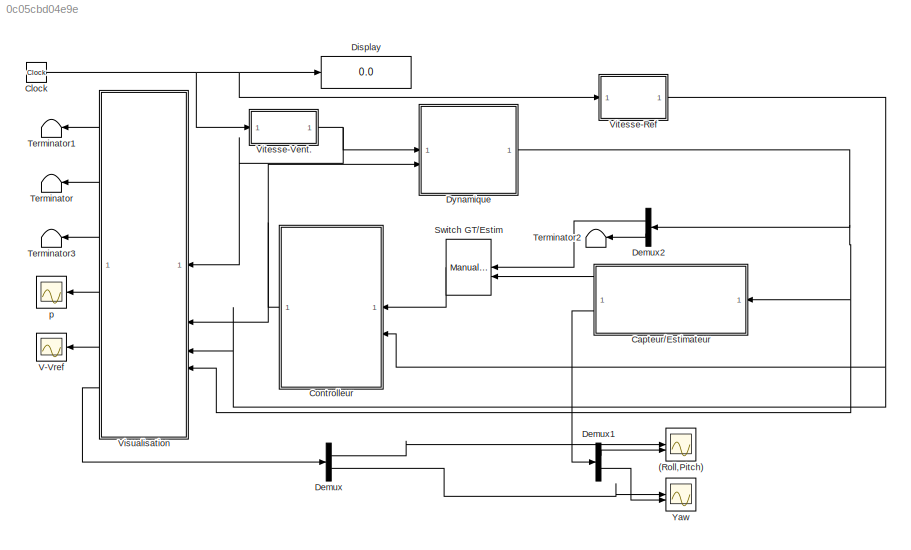
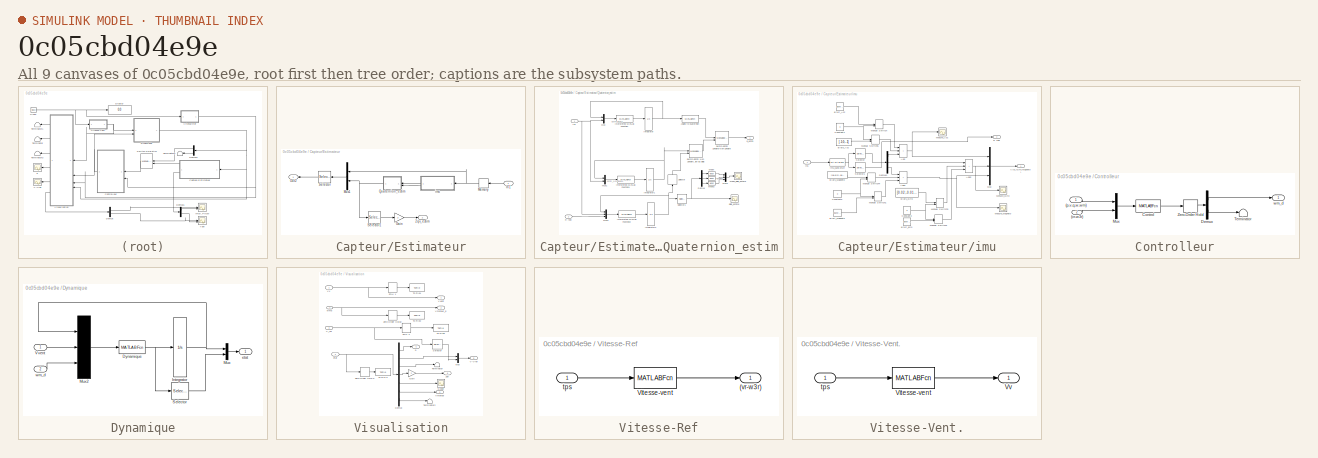
[diagram: thumbnail index - all 9 canvases of the model, root first then tree order]
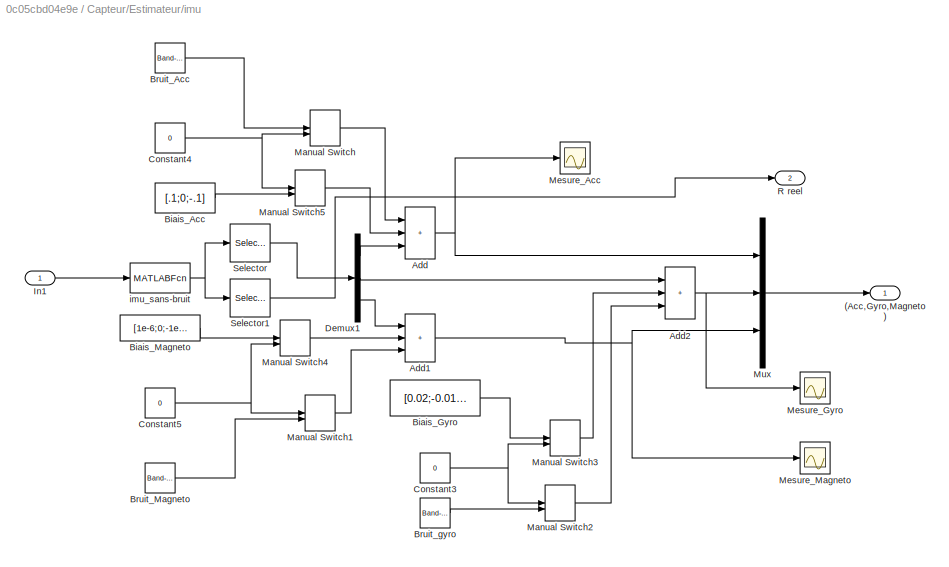
MODEL slx_0c05cbd04e9e
KIND model
CONFIG AbsTol = 1e-2
CONFIG EnableMultiTasking = off
CONFIG FixedStep = 0.01
CONFIG MaxStep = auto
CONFIG MinStep = auto
CONFIG RelTol = 1e-2
CONFIG SampleTimeConstraint = Unconstrained
CONFIG SolverName = FixedStepAuto
CONFIG StartTime = 0.0
CONFIG StopTime = 50
BLOCK [Scope] (Roll,Pitch)
  Floating = off
  NumInputPorts = 2
  ScopeSpecificationString = Simulink.scopes.TimeScopeBlockCfg('CurrentConfiguration', extmgr.ConfigurationSet(extmgr.Configuration('Core','General UI',true),extmgr.Configuration('Core','Source UI',true),extmgr.Configuration('Sources','WiredSimulink',true,'DataLoggingVariableName','ScopeData5','DataLoggingSaveFormat','StructureWithTime','DataLoggingLimitDataPoints',true,'DataLoggingDecimation','1','DataLoggingDecimateData',tr...<+1943ch>
BLOCK [SubSystem] Capteur//Estimateur
  TreatAsAtomicUnit = on
BLOCK [Outport] Capteur//Estimateur/2qv_estim
  Port = 2
BLOCK [Gain] Capteur//Estimateur/Gain
  Gain = 2
BLOCK [Inport] Capteur//Estimateur/In1
BLOCK [Memory] Capteur//Estimateur/Memory
  InheritSampleTime = on
BLOCK [Mux] Capteur//Estimateur/Mux1
  DisplayOption = bar
  Inputs = 2
BLOCK [Outport] Capteur//Estimateur/Out2
BLOCK [SubSystem] Capteur//Estimateur/Quaternion_estim
  TreatAsAtomicUnit = on
BLOCK [MATLABFcn] Capteur//Estimateur/Quaternion_estim/Angles-to-quaternion
  MATLABFcn = angtoquat
  OutputDimensions = 4
BLOCK [Demux] Capteur//Estimateur/Quaternion_estim/Demux
  Outputs = 3
BLOCK [Inport] Capteur//Estimateur/Quaternion_estim/In1
BLOCK [Integrator] Capteur//Estimateur/Quaternion_estim/Integrator
  InitialCondition = [0;0;0]
BLOCK [Integrator] Capteur//Estimateur/Quaternion_estim/Integrator1
  InitialCondition = [1;0;0;0]
BLOCK [Integrator] Capteur//Estimateur/Quaternion_estim/Integrator2
  InitialCondition = [1;0;0;0;0;0;0]
BLOCK [MATLABFcn] Capteur//Estimateur/Quaternion_estim/Interpreted MATLAB Function
  MATLABFcn = estim_lin
  OutputDimensions = 3
BLOCK [MATLABFcn] Capteur//Estimateur/Quaternion_estim/Interpreted MATLAB Function1
  MATLABFcn = estim_nonlin
  OutputDimensions = 4
BLOCK [MATLABFcn] Capteur//Estimateur/Quaternion_estim/Interpreted MATLAB Function2
  MATLABFcn = estim_nonlin_attitude_biais
  OutputDimensions = 7
BLOCK [Reference] Capteur//Estimateur/Quaternion_estim/Mean  REF=dspstat3/Mean
  SourceBlock = dspstat3/Mean
  SourceType = Mean
  UserDataPersistent = on
BLOCK [Reference] Capteur//Estimateur/Quaternion_estim/Mean1  REF=dspstat3/Mean
  SourceBlock = dspstat3/Mean
  SourceType = Mean
  UserDataPersistent = on
BLOCK [Reference] Capteur//Estimateur/Quaternion_estim/Mean2  REF=dspstat3/Mean
  SourceBlock = dspstat3/Mean
  SourceType = Mean
  UserDataPersistent = on
BLOCK [Mux] Capteur//Estimateur/Quaternion_estim/Mux
  DisplayOption = bar
  Inputs = 2
BLOCK [Mux] Capteur//Estimateur/Quaternion_estim/Mux1
  DisplayOption = bar
  Inputs = 2
BLOCK [Mux] Capteur//Estimateur/Quaternion_estim/Mux2
  DisplayOption = bar
  Inputs = 3
BLOCK [Mux] Capteur//Estimateur/Quaternion_estim/Mux3
  DisplayOption = bar
  Inputs = 3
BLOCK [Inport] Capteur//Estimateur/Quaternion_estim/R reel
  Port = 2
BLOCK [Selector] Capteur//Estimateur/Quaternion_estim/Selector
  IndexOptions = Index vector (dialog)
  Indices = [1 2 3 4]
  InputPortWidth = 7
  NameLocation = right
  OutputSizes = 1
BLOCK [Selector] Capteur//Estimateur/Quaternion_estim/Selector1
  IndexOptions = Index vector (dialog)
  Indices = [5 6 7]
  InputPortWidth = 7
  OutputSizes = 1
BLOCK [ManualSwitch] Capteur//Estimateur/Quaternion_estim/Switch-Estim Linéaire//Non-Linéaire
  CurrentSetting = 0
BLOCK [ManualSwitch] Capteur//Estimateur/Quaternion_estim/Switch-Estim Non Linéaire normal//Non-Linéaire avec composation du biais
  CurrentSetting = 0
BLOCK [Scope] Capteur//Estimateur/Quaternion_estim/biais_estime
  Floating = off
  NumInputPorts = 1
  ScopeSpecificationString = Simulink.scopes.TimeScopeBlockCfg('CurrentConfiguration', extmgr.ConfigurationSet(extmgr.Configuration('Core','General UI',true),extmgr.Configuration('Core','Source UI',true),extmgr.Configuration('Sources','WiredSimulink',true,'DataLoggingVariableName','ScopeData1'),extmgr.Configuration('Visuals','Time Domain',true,'SerializedDisplays',{struct('MinYLimReal','-0.09221','MaxYLimReal','0.1118','YLabe...<+1594ch>
BLOCK [Scope] Capteur//Estimateur/Quaternion_estim/mean_biais_estime
  Floating = off
  NumInputPorts = 1
  ScopeSpecificationString = Simulink.scopes.TimeScopeBlockCfg('CurrentConfiguration', extmgr.ConfigurationSet(extmgr.Configuration('Core','General UI',true),extmgr.Configuration('Core','Source UI',true),extmgr.Configuration('Sources','WiredSimulink',true,'DataLoggingVariableName','ScopeData1'),extmgr.Configuration('Visuals','Time Domain',true,'SerializedDisplays',{struct('MinYLimReal','-0.02957','MaxYLimReal','0.02619','YLab...<+1560ch>
BLOCK [Outport] Capteur//Estimateur/Quaternion_estim/q_estim
BLOCK [Selector] Capteur//Estimateur/Selector
  IndexOptions = Index vector (dialog)
  Indices = [1 2 3 4 5 6 21 22 23 24 11 12 13 14 15 16 17]
  InputPortWidth = 24
  OutputSizes = 1
BLOCK [Selector] Capteur//Estimateur/Selector1
  IndexOptions = Index vector (dialog)
  Indices = [2 3 4]
  InputPortWidth = 4
  OutputSizes = 1
BLOCK [SubSystem] Capteur//Estimateur/imu
  TreatAsAtomicUnit = on
BLOCK [Outport] Capteur//Estimateur/imu/(Acc,Gyro,Magneto)
  VectorParamsAs1DForOutWhenUnconnected = off
BLOCK [Sum] Capteur//Estimateur/imu/Add
  IconShape = rectangular
  Inputs = +++
BLOCK [Sum] Capteur//Estimateur/imu/Add1
  IconShape = rectangular
  Inputs = +++
BLOCK [Sum] Capteur//Estimateur/imu/Add2
  IconShape = rectangular
  Inputs = +++
BLOCK [Constant] Capteur//Estimateur/imu/Biais_Acc
  Value = [.1;0;-.1]
BLOCK [Constant] Capteur//Estimateur/imu/Biais_Gyro
  Value = [0.02;-0.01;0.015]
BLOCK [Constant] Capteur//Estimateur/imu/Biais_Magneto
  Value = [1e-6;0;-1e-6]
BLOCK [Reference] Capteur//Estimateur/imu/Bruit_Acc  REF=simulink/Sources/Band-Limited
White Noise
  SourceBlock = simulink/Sources/Band-Limited\nWhite Noise
  SourceType = Band-Limited White Noise.
BLOCK [Reference] Capteur//Estimateur/imu/Bruit_Magneto  REF=simulink/Sources/Band-Limited
White Noise
  SourceBlock = simulink/Sources/Band-Limited\nWhite Noise
  SourceType = Band-Limited White Noise.
BLOCK [Reference] Capteur//Estimateur/imu/Bruit_gyro  REF=simulink/Sources/Band-Limited
White Noise
  SourceBlock = simulink/Sources/Band-Limited\nWhite Noise
  SourceType = Band-Limited White Noise.
BLOCK [Constant] Capteur//Estimateur/imu/Constant3
  Value = 0
BLOCK [Constant] Capteur//Estimateur/imu/Constant4
  Value = 0
BLOCK [Constant] Capteur//Estimateur/imu/Constant5
  Value = 0
BLOCK [Demux] Capteur//Estimateur/imu/Demux1
  Outputs = 3
BLOCK [Inport] Capteur//Estimateur/imu/In1
BLOCK [ManualSwitch] Capteur//Estimateur/imu/Manual Switch
BLOCK [ManualSwitch] Capteur//Estimateur/imu/Manual Switch1
  CurrentSetting = 0
BLOCK [ManualSwitch] Capteur//Estimateur/imu/Manual Switch2
  CurrentSetting = 0
BLOCK [ManualSwitch] Capteur//Estimateur/imu/Manual Switch3
BLOCK [ManualSwitch] Capteur//Estimateur/imu/Manual Switch4
BLOCK [ManualSwitch] Capteur//Estimateur/imu/Manual Switch5
  CurrentSetting = 0
BLOCK [Scope] Capteur//Estimateur/imu/Mesure_Acc
  Floating = off
  NumInputPorts = 1
  ScopeSpecificationString = Simulink.scopes.TimeScopeBlockCfg('CurrentConfiguration', extmgr.ConfigurationSet(extmgr.Configuration('Core','General UI',true),extmgr.Configuration('Core','Source UI',true),extmgr.Configuration('Sources','WiredSimulink',true,'DataLoggingVariableName','ScopeData1'),extmgr.Configuration('Visuals','Time Domain',true,'SerializedDisplays',{struct('MinYLimReal','-24.02401','MaxYLimReal','16.52667','YL...<+1457ch>
BLOCK [Scope] Capteur//Estimateur/imu/Mesure_Gyro
  Floating = off
  NumInputPorts = 1
  ScopeSpecificationString = Simulink.scopes.TimeScopeBlockCfg('CurrentConfiguration', extmgr.ConfigurationSet(extmgr.Configuration('Core','General UI',true),extmgr.Configuration('Core','Source UI',true),extmgr.Configuration('Sources','WiredSimulink',true,'DataLoggingVariableName','ScopeData3'),extmgr.Configuration('Visuals','Time Domain',true,'SerializedDisplays',{struct('MinYLimReal','-2.16212','MaxYLimReal','2.64158','YLab...<+1462ch>
BLOCK [Scope] Capteur//Estimateur/imu/Mesure_Magneto 
  Floating = off
  NumInputPorts = 1
  ScopeSpecificationString = Simulink.scopes.TimeScopeBlockCfg('CurrentConfiguration', extmgr.ConfigurationSet(extmgr.Configuration('Core','General UI',true),extmgr.Configuration('Core','Source UI',true),extmgr.Configuration('Sources','WiredSimulink',true,'DataLoggingVariableName','ScopeData2'),extmgr.Configuration('Visuals','Time Domain',true,'SerializedDisplays',{struct('MinYLimReal','-0.00005','MaxYLimReal','0.00006','YLab...<+1437ch>
BLOCK [Mux] Capteur//Estimateur/imu/Mux
  DisplayOption = bar
  Inputs = 3
BLOCK [Outport] Capteur//Estimateur/imu/R reel
  Port = 2
BLOCK [Selector] Capteur//Estimateur/imu/Selector
  IndexOptions = Index vector (dialog)
  Indices = [1 2 3 4 5 6 7 8 9]
  InputPortWidth = 18
  OutputSizes = 1
BLOCK [Selector] Capteur//Estimateur/imu/Selector1
  IndexOptions = Index vector (dialog)
  Indices = [10 11 12 13 14 15 16 17 18]
  InputPortWidth = 18
  OutputSizes = 1
BLOCK [MATLABFcn] Capteur//Estimateur/imu/imu_sans-bruit
  MATLABFcn = imu(u)
  OutputDimensions = 18
BLOCK [Clock] Clock
BLOCK [SubSystem] Controlleur
BLOCK [Inport] Controlleur/(p,v,q,w,wm)
BLOCK [Inport] Controlleur/(vr-w3r)
  Port = 2
BLOCK [MATLABFcn] Controlleur/Control
  MATLABFcn = control(u)
  OutputDimensions = 7
BLOCK [Demux] Controlleur/Demux
  Outputs = 2
BLOCK [Mux] Controlleur/Mux
  DisplayOption = bar
  Inputs = 2
BLOCK [Terminator] Controlleur/Terminator
BLOCK [ZeroOrderHold] Controlleur/Zero-Order Hold
  SampleTime = 0.01
BLOCK [Outport] Controlleur/wm_d
  VectorParamsAs1DForOutWhenUnconnected = off
BLOCK [Demux] Demux
  Outputs = [2; 1]
BLOCK [Demux] Demux1
  Outputs = [2;1]
BLOCK [Demux] Demux2
  Outputs = [17 3]
BLOCK [Display] Display
  Decimation = 1
BLOCK [SubSystem] Dynamique
BLOCK [MATLABFcn] Dynamique/Dynamique
  MATLABFcn = dynamique(u)
  OutputDimensions = 17
BLOCK [Integrator] Dynamique/Integrator
  InitialCondition = init
BLOCK [Mux] Dynamique/Mux
  DisplayOption = bar
  Inputs = 2
BLOCK [Mux] Dynamique/Mux2
  Inputs = [17 3 4]
BLOCK [Selector] Dynamique/Selector
  IndexOptions = Index vector (dialog)
  Indices = [4 5 6]
  InputPortWidth = 17
  OutputSizes = 1
BLOCK [Inport] Dynamique/Vvent
BLOCK [Outport] Dynamique/etat
  VectorParamsAs1DForOutWhenUnconnected = off
BLOCK [Inport] Dynamique/wm_d
  Port = 2
BLOCK [ManualSwitch] Switch GT//Estim
  CurrentSetting = 0
BLOCK [Terminator] Terminator
BLOCK [Terminator] Terminator1
BLOCK [Terminator] Terminator2
BLOCK [Terminator] Terminator3
BLOCK [Scope] V-Vref
  Floating = off
  NumInputPorts = 1
  ScopeSpecificationString = Simulink.scopes.TimeScopeBlockCfg('CurrentConfiguration', extmgr.ConfigurationSet(extmgr.Configuration('Core','General UI',true),extmgr.Configuration('Core','Source UI',true),extmgr.Configuration('Sources','WiredSimulink',true,'DataLoggingVariableName','ScopeData2','DataLoggingSaveFormat','StructureWithTime','DataLoggingLimitDataPoints',true,'DataLoggingDecimation','1','DataLoggingDecimateData',tr...<+1972ch>
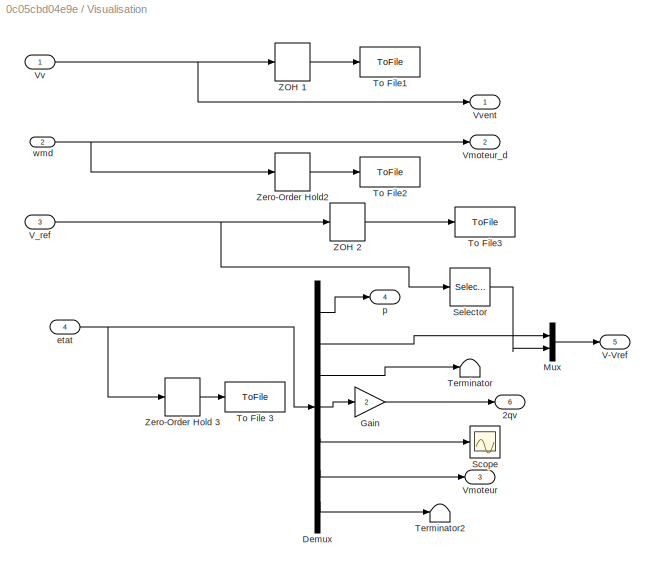
BLOCK [SubSystem] Visualisation
BLOCK [Outport] Visualisation/2qv
  Port = 6
  VectorParamsAs1DForOutWhenUnconnected = off
BLOCK [Demux] Visualisation/Demux
  Outputs = [3 3 1 3 3 4 3]
BLOCK [Gain] Visualisation/Gain
  Gain = 2
BLOCK [Mux] Visualisation/Mux
  DisplayOption = bar
  Inputs = 2
BLOCK [Scope] Visualisation/Scope
  Floating = off
  NumInputPorts = 1
  ScopeSpecificationString = Simulink.scopes.TimeScopeBlockCfg('CurrentConfiguration', extmgr.ConfigurationSet(extmgr.Configuration('Core','General UI',true),extmgr.Configuration('Core','Source UI',true),extmgr.Configuration('Sources','WiredSimulink',true,'DataLoggingVariableName','ScopeData1'),extmgr.Configuration('Visuals','Time Domain',true,'SerializedDisplays',{struct('MinYLimReal','-1.61408','MaxYLimReal','1.80373','YLab...<+1472ch>
BLOCK [Selector] Visualisation/Selector
  IndexOptions = Index vector (dialog)
  Indices = [1 2 3]
  InputPortWidth = 4
  OutputSizes = 1
BLOCK [Terminator] Visualisation/Terminator
BLOCK [Terminator] Visualisation/Terminator2
BLOCK [ToFile] Visualisation/To File 3
  Filename = etat.mat
BLOCK [ToFile] Visualisation/To File1
  Filename = vvent.mat
BLOCK [ToFile] Visualisation/To File2
  Filename = control.mat
BLOCK [ToFile] Visualisation/To File3
  Filename = vr.mat
BLOCK [Outport] Visualisation/V-Vref
  Port = 5
  VectorParamsAs1DForOutWhenUnconnected = off
BLOCK [Inport] Visualisation/V_ref
  Port = 3
BLOCK [Outport] Visualisation/Vmoteur 
  Port = 3
  VectorParamsAs1DForOutWhenUnconnected = off
BLOCK [Outport] Visualisation/Vmoteur_d
  Port = 2
  VectorParamsAs1DForOutWhenUnconnected = off
BLOCK [Inport] Visualisation/Vv
BLOCK [Outport] Visualisation/Vvent
  VectorParamsAs1DForOutWhenUnconnected = off
BLOCK [ZeroOrderHold] Visualisation/ZOH 1
  SampleTime = 0.02
BLOCK [ZeroOrderHold] Visualisation/ZOH 2 
  SampleTime = 0.4
BLOCK [ZeroOrderHold] Visualisation/Zero-Order Hold 3
  SampleTime = 0.02
BLOCK [ZeroOrderHold] Visualisation/Zero-Order Hold2
  SampleTime = 0.4
BLOCK [Inport] Visualisation/etat
  Port = 4
BLOCK [Outport] Visualisation/p
  Port = 4
  VectorParamsAs1DForOutWhenUnconnected = off
BLOCK [Inport] Visualisation/wmd
  Port = 2
BLOCK [SubSystem] Vitesse-Ref
BLOCK [Outport] Vitesse-Ref/(vr-w3r)
  VectorParamsAs1DForOutWhenUnconnected = off
BLOCK [MATLABFcn] Vitesse-Ref/Vitesse-vent
  MATLABFcn = vr(u,choix_traj)
  OutputDimensions = 4
BLOCK [Inport] Vitesse-Ref/tps
BLOCK [SubSystem] Vitesse-Vent.
BLOCK [MATLABFcn] Vitesse-Vent./Vitesse-vent
  MATLABFcn = vent(u,choix_traj)
  OutputDimensions = 3
BLOCK [Outport] Vitesse-Vent./Vv
  VectorParamsAs1DForOutWhenUnconnected = off
BLOCK [Inport] Vitesse-Vent./tps
BLOCK [Scope] Yaw
  Floating = off
  NumInputPorts = 2
  ScopeSpecificationString = Simulink.scopes.TimeScopeBlockCfg('CurrentConfiguration', extmgr.ConfigurationSet(extmgr.Configuration('Core','General UI',true),extmgr.Configuration('Core','Source UI',true),extmgr.Configuration('Sources','WiredSimulink',true,'DataLoggingVariableName','ScopeData1','DataLoggingSaveFormat','StructureWithTime','DataLoggingLimitDataPoints',true,'DataLoggingDecimation','1','DataLoggingDecimateData',tr...<+1860ch>
BLOCK [Scope] p
  Floating = off
  NumInputPorts = 1
  ScopeSpecificationString = Simulink.scopes.TimeScopeBlockCfg('CurrentConfiguration', extmgr.ConfigurationSet(extmgr.Configuration('Core','General UI',true),extmgr.Configuration('Core','Source UI',true),extmgr.Configuration('Sources','WiredSimulink',true,'DataLoggingSaveFormat','StructureWithTime','DataLoggingLimitDataPoints',true,'DataLoggingDecimation','1','DataLoggingDecimateData',true),extmgr.Configuration('Visuals','Tim...<+1735ch>
ANNOTATION Capteur//Estimateur/Quaternion_estim: Estim_Non-linéaire
ANNOTATION Capteur//Estimateur/Quaternion_estim: Estim_linéaire
LINE Capteur//Estimateur/Gain:1 -> Capteur//Estimateur/2qv_estim:1
LINE Capteur//Estimateur/In1:1 -> Capteur//Estimateur/Memory:1
NET Capteur//Estimateur/Memory:1 -> Capteur//Estimateur/Mux1:1, Capteur//Estimateur/imu:1
LINE Capteur//Estimateur/Mux1:1 -> Capteur//Estimateur/Selector:1
LINE Capteur//Estimateur/Quaternion_estim/Angles-to-quaternion:1 -> Capteur//Estimateur/Quaternion_estim/Switch-Estim Linéaire//Non-Linéaire:1
LINE Capteur//Estimateur/Quaternion_estim/Demux:1 -> Capteur//Estimateur/Quaternion_estim/Mean:1
LINE Capteur//Estimateur/Quaternion_estim/Demux:2 -> Capteur//Estimateur/Quaternion_estim/Mean1:1
LINE Capteur//Estimateur/Quaternion_estim/Demux:3 -> Capteur//Estimateur/Quaternion_estim/Mean2:1
NET Capteur//Estimateur/Quaternion_estim/In1:1 -> Capteur//Estimateur/Quaternion_estim/Mux1:2, Capteur//Estimateur/Quaternion_estim/Mux2:2, Capteur//Estimateur/Quaternion_estim/Mux:2
NET Capteur//Estimateur/Quaternion_estim/Integrator1:1 -> Capteur//Estimateur/Quaternion_estim/Mux1:1, Capteur//Estimateur/Quaternion_estim/Switch-Estim Non Linéaire normal//Non-Linéaire avec composation du biais:1
NET Capteur//Estimateur/Quaternion_estim/Integrator2:1 -> Capteur//Estimateur/Quaternion_estim/Mux2:1, Capteur//Estimateur/Quaternion_estim/Selector1:1, Capteur//Estimateur/Quaternion_estim/Selector:1
NET Capteur//Estimateur/Quaternion_estim/Integrator:1 -> Capteur//Estimateur/Quaternion_estim/Angles-to-quaternion:1, Capteur//Estimateur/Quaternion_estim/Mux:1
LINE Capteur//Estimateur/Quaternion_estim/Interpreted MATLAB Function1:1 -> Capteur//Estimateur/Quaternion_estim/Integrator1:1
LINE Capteur//Estimateur/Quaternion_estim/Interpreted MATLAB Function2:1 -> Capteur//Estimateur/Quaternion_estim/Integrator2:1
LINE Capteur//Estimateur/Quaternion_estim/Interpreted MATLAB Function:1 -> Capteur//Estimateur/Quaternion_estim/Integrator:1
LINE Capteur//Estimateur/Quaternion_estim/Mean1:1 -> Capteur//Estimateur/Quaternion_estim/Mux3:2
LINE Capteur//Estimateur/Quaternion_estim/Mean2:1 -> Capteur//Estimateur/Quaternion_estim/Mux3:3
LINE Capteur//Estimateur/Quaternion_estim/Mean:1 -> Capteur//Estimateur/Quaternion_estim/Mux3:1
LINE Capteur//Estimateur/Quaternion_estim/Mux1:1 -> Capteur//Estimateur/Quaternion_estim/Interpreted MATLAB Function1:1
LINE Capteur//Estimateur/Quaternion_estim/Mux2:1 -> Capteur//Estimateur/Quaternion_estim/Interpreted MATLAB Function2:1
LINE Capteur//Estimateur/Quaternion_estim/Mux3:1 -> Capteur//Estimateur/Quaternion_estim/mean_biais_estime:1
LINE Capteur//Estimateur/Quaternion_estim/Mux:1 -> Capteur//Estimateur/Quaternion_estim/Interpreted MATLAB Function:1
LINE Capteur//Estimateur/Quaternion_estim/R reel:1 -> Capteur//Estimateur/Quaternion_estim/Mux2:3
NET Capteur//Estimateur/Quaternion_estim/Selector1:1 -> Capteur//Estimateur/Quaternion_estim/Demux:1, Capteur//Estimateur/Quaternion_estim/biais_estime:1
LINE Capteur//Estimateur/Quaternion_estim/Selector:1 -> Capteur//Estimateur/Quaternion_estim/Switch-Estim Non Linéaire normal//Non-Linéaire avec composation du biais:2
LINE Capteur//Estimateur/Quaternion_estim/Switch-Estim Linéaire//Non-Linéaire:1 -> Capteur//Estimateur/Quaternion_estim/q_estim:1
LINE Capteur//Estimateur/Quaternion_estim/Switch-Estim Non Linéaire normal//Non-Linéaire avec composation du biais:1 -> Capteur//Estimateur/Quaternion_estim/Switch-Estim Linéaire//Non-Linéaire:2
NET Capteur//Estimateur/Quaternion_estim:1 -> Capteur//Estimateur/Mux1:2, Capteur//Estimateur/Selector1:1
LINE Capteur//Estimateur/Selector1:1 -> Capteur//Estimateur/Gain:1
LINE Capteur//Estimateur/Selector:1 -> Capteur//Estimateur/Out2:1
NET Capteur//Estimateur/imu/Add1:1 -> Capteur//Estimateur/imu/Mesure_Magneto :1, Capteur//Estimateur/imu/Mux:3
NET Capteur//Estimateur/imu/Add2:1 -> Capteur//Estimateur/imu/Mesure_Gyro:1, Capteur//Estimateur/imu/Mux:2
NET Capteur//Estimateur/imu/Add:1 -> Capteur//Estimateur/imu/Mesure_Acc:1, Capteur//Estimateur/imu/Mux:1
LINE Capteur//Estimateur/imu/Biais_Acc:1 -> Capteur//Estimateur/imu/Manual Switch5:2
LINE Capteur//Estimateur/imu/Biais_Gyro:1 -> Capteur//Estimateur/imu/Manual Switch3:1
LINE Capteur//Estimateur/imu/Biais_Magneto:1 -> Capteur//Estimateur/imu/Manual Switch4:1
LINE Capteur//Estimateur/imu/Bruit_Acc:1 -> Capteur//Estimateur/imu/Manual Switch:1
LINE Capteur//Estimateur/imu/Bruit_Magneto:1 -> Capteur//Estimateur/imu/Manual Switch1:2
LINE Capteur//Estimateur/imu/Bruit_gyro:1 -> Capteur//Estimateur/imu/Manual Switch2:2
NET Capteur//Estimateur/imu/Constant3:1 -> Capteur//Estimateur/imu/Manual Switch2:1, Capteur//Estimateur/imu/Manual Switch3:2
NET Capteur//Estimateur/imu/Constant4:1 -> Capteur//Estimateur/imu/Manual Switch5:1, Capteur//Estimateur/imu/Manual Switch:2
NET Capteur//Estimateur/imu/Constant5:1 -> Capteur//Estimateur/imu/Manual Switch1:1, Capteur//Estimateur/imu/Manual Switch4:2
LINE Capteur//Estimateur/imu/Demux1:1 -> Capteur//Estimateur/imu/Add:3
LINE Capteur//Estimateur/imu/Demux1:2 -> Capteur//Estimateur/imu/Add2:1
LINE Capteur//Estimateur/imu/Demux1:3 -> Capteur//Estimateur/imu/Add1:1
LINE Capteur//Estimateur/imu/In1:1 -> Capteur//Estimateur/imu/imu_sans-bruit:1
LINE Capteur//Estimateur/imu/Manual Switch1:1 -> Capteur//Estimateur/imu/Add1:3
LINE Capteur//Estimateur/imu/Manual Switch2:1 -> Capteur//Estimateur/imu/Add2:3
LINE Capteur//Estimateur/imu/Manual Switch3:1 -> Capteur//Estimateur/imu/Add2:2
LINE Capteur//Estimateur/imu/Manual Switch4:1 -> Capteur//Estimateur/imu/Add1:2
LINE Capteur//Estimateur/imu/Manual Switch5:1 -> Capteur//Estimateur/imu/Add:2
LINE Capteur//Estimateur/imu/Manual Switch:1 -> Capteur//Estimateur/imu/Add:1
LINE Capteur//Estimateur/imu/Mux:1 -> Capteur//Estimateur/imu/(Acc,Gyro,Magneto):1
LINE Capteur//Estimateur/imu/Selector1:1 -> Capteur//Estimateur/imu/R reel:1
LINE Capteur//Estimateur/imu/Selector:1 -> Capteur//Estimateur/imu/Demux1:1
NET Capteur//Estimateur/imu/imu_sans-bruit:1 -> Capteur//Estimateur/imu/Selector1:1, Capteur//Estimateur/imu/Selector:1
LINE Capteur//Estimateur/imu:1 -> Capteur//Estimateur/Quaternion_estim:1
LINE Capteur//Estimateur/imu:2 -> Capteur//Estimateur/Quaternion_estim:2
LINE Capteur//Estimateur:1 -> Switch GT//Estim:2
LINE Capteur//Estimateur:2 -> Demux1:1
NET Clock:1 -> Display:1, Vitesse-Ref:1, Vitesse-Vent.:1
LINE Controlleur/(p,v,q,w,wm):1 -> Controlleur/Mux:1
LINE Controlleur/(vr-w3r):1 -> Controlleur/Mux:2
LINE Controlleur/Control:1 -> Controlleur/Zero-Order Hold:1
LINE Controlleur/Demux:1 -> Controlleur/wm_d:1
LINE Controlleur/Demux:2 -> Controlleur/Terminator:1
LINE Controlleur/Mux:1 -> Controlleur/Control:1
LINE Controlleur/Zero-Order Hold:1 -> Controlleur/Demux:1
NET Controlleur:1 -> Dynamique:2, Visualisation:2
LINE Demux1:1 -> (Roll,Pitch):2
LINE Demux1:2 -> Yaw:2
LINE Demux2:1 -> Switch GT//Estim:1
LINE Demux2:2 -> Terminator2:1
LINE Demux:1 -> (Roll,Pitch):1
LINE Demux:2 -> Yaw:1
NET Dynamique/Dynamique:1 -> Dynamique/Integrator:1, Dynamique/Selector:1
NET Dynamique/Integrator:1 -> Dynamique/Mux2:1, Dynamique/Mux:1
LINE Dynamique/Mux2:1 -> Dynamique/Dynamique:1
LINE Dynamique/Mux:1 -> Dynamique/etat:1
LINE Dynamique/Selector:1 -> Dynamique/Mux:2
LINE Dynamique/Vvent:1 -> Dynamique/Mux2:2
LINE Dynamique/wm_d:1 -> Dynamique/Mux2:3
NET Dynamique:1 -> Capteur//Estimateur:1, Demux2:1, Visualisation:4
LINE Switch GT//Estim:1 -> Controlleur:1
LINE Visualisation/Demux:1 -> Visualisation/p:1
LINE Visualisation/Demux:2 -> Visualisation/Mux:1
LINE Visualisation/Demux:3 -> Visualisation/Terminator:1
LINE Visualisation/Demux:4 -> Visualisation/Gain:1
LINE Visualisation/Demux:5 -> Visualisation/Scope:1
LINE Visualisation/Demux:6 -> Visualisation/Vmoteur :1
LINE Visualisation/Demux:7 -> Visualisation/Terminator2:1
LINE Visualisation/Gain:1 -> Visualisation/2qv:1
LINE Visualisation/Mux:1 -> Visualisation/V-Vref:1
LINE Visualisation/Selector:1 -> Visualisation/Mux:2
NET Visualisation/V_ref:1 -> Visualisation/Selector:1, Visualisation/ZOH 2 :1
NET Visualisation/Vv:1 -> Visualisation/Vvent:1, Visualisation/ZOH 1:1
LINE Visualisation/ZOH 1:1 -> Visualisation/To File1:1
LINE Visualisation/ZOH 2 :1 -> Visualisation/To File3:1
LINE Visualisation/Zero-Order Hold 3:1 -> Visualisation/To File 3:1
LINE Visualisation/Zero-Order Hold2:1 -> Visualisation/To File2:1
NET Visualisation/etat:1 -> Visualisation/Demux:1, Visualisation/Zero-Order Hold 3:1
NET Visualisation/wmd:1 -> Visualisation/Vmoteur_d:1, Visualisation/Zero-Order Hold2:1
LINE Visualisation:1 -> Terminator1:1
LINE Visualisation:2 -> Terminator:1
LINE Visualisation:3 -> Terminator3:1
LINE Visualisation:4 -> p:1
LINE Visualisation:5 -> V-Vref:1
LINE Visualisation:6 -> Demux:1
LINE Vitesse-Ref/Vitesse-vent:1 -> Vitesse-Ref/(vr-w3r):1
LINE Vitesse-Ref/tps:1 -> Vitesse-Ref/Vitesse-vent:1
NET Vitesse-Ref:1 -> Controlleur:2, Visualisation:3
LINE Vitesse-Vent./Vitesse-vent:1 -> Vitesse-Vent./Vv:1
LINE Vitesse-Vent./tps:1 -> Vitesse-Vent./Vitesse-vent:1
NET Vitesse-Vent.:1 -> Dynamique:1, Visualisation:1
note: NET lines group one-source signal fan-out (src -> all destinations, sorted); 1:1 wires keep LINE
